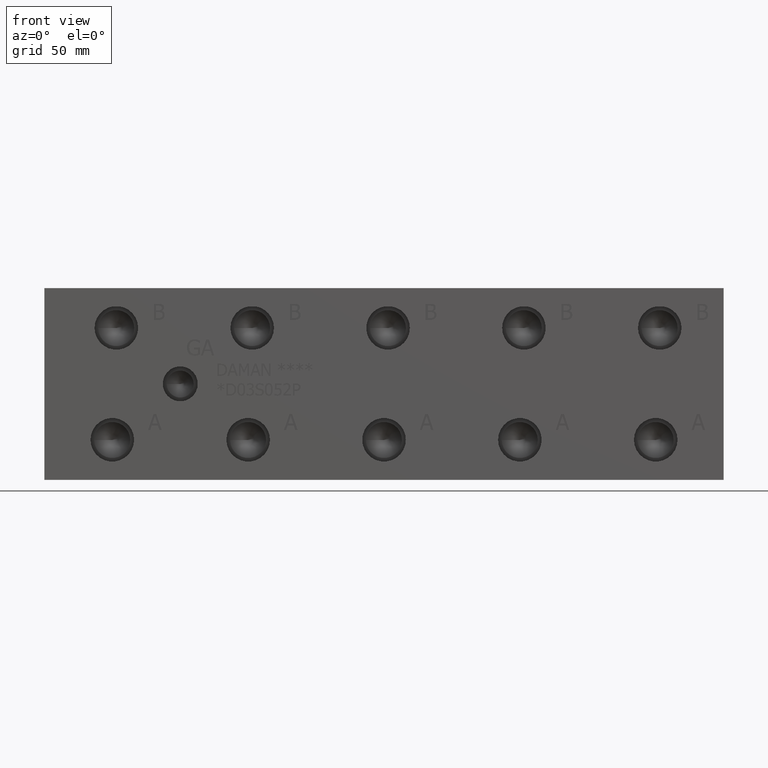
[diagram: clean part render]
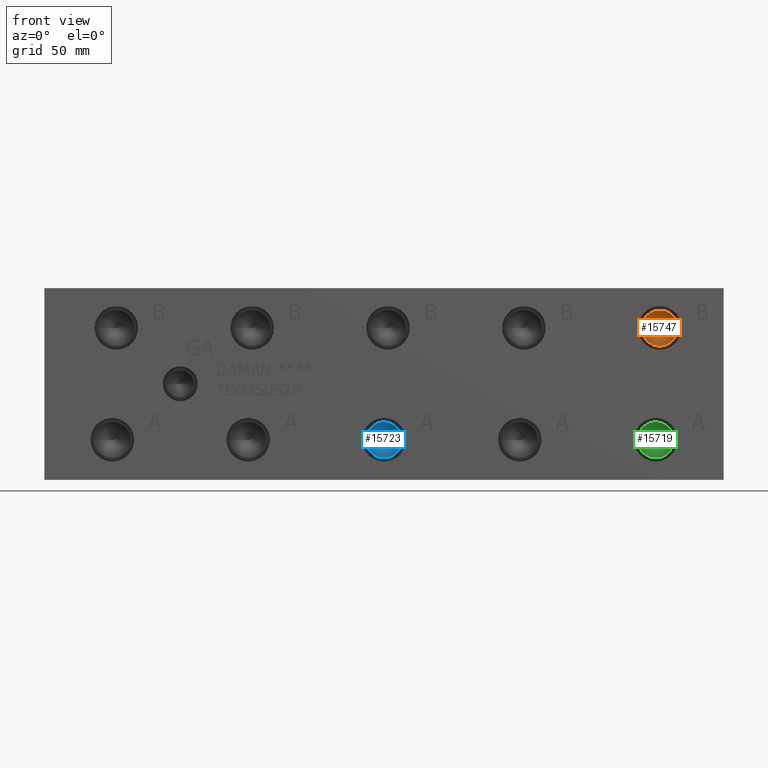
[diagram: same view with three faces highlighted in distinct colors, each labeled with its STEP entity id]
A machine part, front view with three faces highlighted in distinct colors.
Their STEP definitions:

[orange] entity #15747 — the highlighted conical surface has half-angle 60 deg.
#130=CONICAL_SURFACE('',#16458,3.57505,1.0471975511966);
#272=CIRCLE('',#16459,7.1501);
#273=CIRCLE('',#16460,7.1501);
#1812=FACE_OUTER_BOUND('',#2720,.T.);
#2720=EDGE_LOOP('',(#13377,#13378,#13379,#13380));
#4228=LINE('',#26607,#5627);
#5627=VECTOR('',#19225,3.57505);
#7375=VERTEX_POINT('',#26603);
#7376=VERTEX_POINT('',#26604);
#7377=VERTEX_POINT('',#26606);
#9478=EDGE_CURVE('',#7375,#7376,#272,.T.);
#9479=EDGE_CURVE('',#7376,#7377,#4228,.T.);
#9480=EDGE_CURVE('',#7376,#7375,#273,.T.);
#13377=ORIENTED_EDGE('',*,*,#9478,.T.);
#13378=ORIENTED_EDGE('',*,*,#9479,.T.);
#13379=ORIENTED_EDGE('',*,*,#9479,.F.);
#13380=ORIENTED_EDGE('',*,*,#9480,.T.);
#15747=ADVANCED_FACE('',(#1812),#130,.F.);
#16458=AXIS2_PLACEMENT_3D('',#26602,#19221,#19222);
#16459=AXIS2_PLACEMENT_3D('',#26605,#19223,#19224);
#16460=AXIS2_PLACEMENT_3D('',#26608,#19226,#19227);
#19221=DIRECTION('center_axis',(0.,-1.,0.));
#19222=DIRECTION('ref_axis',(1.,0.,0.));
#19223=DIRECTION('center_axis',(0.,-1.,0.));
#19224=DIRECTION('ref_axis',(1.,0.,0.));
#19225=DIRECTION('',(0.866025403784439,0.5,1.06057523872491E-16));
#19226=DIRECTION('center_axis',(0.,-1.,0.));
#19227=DIRECTION('ref_axis',(1.,0.,0.));
#26602=CARTESIAN_POINT('Origin',(244.475,14.2116660798664,60.325));
#26603=CARTESIAN_POINT('',(251.6251,12.14761,60.325));
#26604=CARTESIAN_POINT('',(237.3249,12.14761,60.325));
#26605=CARTESIAN_POINT('Origin',(244.475,12.14761,60.325));
#26606=CARTESIAN_POINT('',(244.475,16.2757221597327,60.325));
#26607=CARTESIAN_POINT('',(240.89995,14.2116660798664,60.325));
#26608=CARTESIAN_POINT('Origin',(244.475,12.14761,60.325));

[blue] entity #15723 — the highlighted conical surface has half-angle 60 deg.
#124=CONICAL_SURFACE('',#16404,3.57505,1.0471975511966);
#242=CIRCLE('',#16405,7.1501);
#243=CIRCLE('',#16406,7.1501);
#1788=FACE_OUTER_BOUND('',#2690,.T.);
#2690=EDGE_LOOP('',(#13269,#13270,#13271,#13272));
#4210=LINE('',#26499,#5609);
#5609=VECTOR('',#19099,3.57505);
#7339=VERTEX_POINT('',#26495);
#7340=VERTEX_POINT('',#26496);
#7341=VERTEX_POINT('',#26498);
#9430=EDGE_CURVE('',#7339,#7340,#242,.T.);
#9431=EDGE_CURVE('',#7340,#7341,#4210,.T.);
#9432=EDGE_CURVE('',#7340,#7339,#243,.T.);
#13269=ORIENTED_EDGE('',*,*,#9430,.T.);
#13270=ORIENTED_EDGE('',*,*,#9431,.T.);
#13271=ORIENTED_EDGE('',*,*,#9431,.F.);
#13272=ORIENTED_EDGE('',*,*,#9432,.T.);
#15723=ADVANCED_FACE('',(#1788),#124,.F.);
#16404=AXIS2_PLACEMENT_3D('',#26494,#19095,#19096);
#16405=AXIS2_PLACEMENT_3D('',#26497,#19097,#19098);
#16406=AXIS2_PLACEMENT_3D('',#26500,#19100,#19101);
#19095=DIRECTION('center_axis',(0.,-1.,0.));
#19096=DIRECTION('ref_axis',(1.,0.,0.));
#19097=DIRECTION('center_axis',(0.,-1.,0.));
#19098=DIRECTION('ref_axis',(1.,0.,0.));
#19099=DIRECTION('',(0.866025403784439,0.5,1.06057523872491E-16));
#19100=DIRECTION('center_axis',(0.,-1.,0.));
#19101=DIRECTION('ref_axis',(1.,0.,0.));
#26494=CARTESIAN_POINT('Origin',(134.9248,14.2116660798664,15.875));
#26495=CARTESIAN_POINT('',(142.0749,12.14761,15.875));
#26496=CARTESIAN_POINT('',(127.7747,12.14761,15.875));
#26497=CARTESIAN_POINT('Origin',(134.9248,12.14761,15.875));
#26498=CARTESIAN_POINT('',(134.9248,16.2757221597327,15.875));
#26499=CARTESIAN_POINT('',(131.34975,14.2116660798664,15.875));
#26500=CARTESIAN_POINT('Origin',(134.9248,12.14761,15.875));

[green] entity #15719 — the highlighted conical surface has half-angle 60 deg.
#123=CONICAL_SURFACE('',#16395,3.57505,1.0471975511966);
#237=CIRCLE('',#16396,7.1501);
#238=CIRCLE('',#16397,7.1501);
#1784=FACE_OUTER_BOUND('',#2685,.T.);
#2685=EDGE_LOOP('',(#13251,#13252,#13253,#13254));
#4207=LINE('',#26481,#5606);
#5606=VECTOR('',#19078,3.57505);
#7333=VERTEX_POINT('',#26477);
#7334=VERTEX_POINT('',#26478);
#7335=VERTEX_POINT('',#26480);
#9422=EDGE_CURVE('',#7333,#7334,#237,.T.);
#9423=EDGE_CURVE('',#7334,#7335,#4207,.T.);
#9424=EDGE_CURVE('',#7334,#7333,#238,.T.);
#13251=ORIENTED_EDGE('',*,*,#9422,.T.);
#13252=ORIENTED_EDGE('',*,*,#9423,.T.);
#13253=ORIENTED_EDGE('',*,*,#9423,.F.);
#13254=ORIENTED_EDGE('',*,*,#9424,.T.);
#15719=ADVANCED_FACE('',(#1784),#123,.F.);
#16395=AXIS2_PLACEMENT_3D('',#26476,#19074,#19075);
#16396=AXIS2_PLACEMENT_3D('',#26479,#19076,#19077);
#16397=AXIS2_PLACEMENT_3D('',#26482,#19079,#19080);
#19074=DIRECTION('center_axis',(0.,-1.,0.));
#19075=DIRECTION('ref_axis',(1.,0.,0.));
#19076=DIRECTION('center_axis',(0.,-1.,0.));
#19077=DIRECTION('ref_axis',(1.,0.,0.));
#19078=DIRECTION('',(0.866025403784439,0.5,1.06057523872491E-16));
#19079=DIRECTION('center_axis',(0.,-1.,0.));
#19080=DIRECTION('ref_axis',(1.,0.,0.));
#26476=CARTESIAN_POINT('Origin',(242.8748,14.2116660798664,15.875));
#26477=CARTESIAN_POINT('',(250.0249,12.14761,15.875));
#26478=CARTESIAN_POINT('',(235.7247,12.14761,15.875));
#26479=CARTESIAN_POINT('Origin',(242.8748,12.14761,15.875));
#26480=CARTESIAN_POINT('',(242.8748,16.2757221597327,15.875));
#26481=CARTESIAN_POINT('',(239.29975,14.2116660798664,15.875));
#26482=CARTESIAN_POINT('Origin',(242.8748,12.14761,15.875));